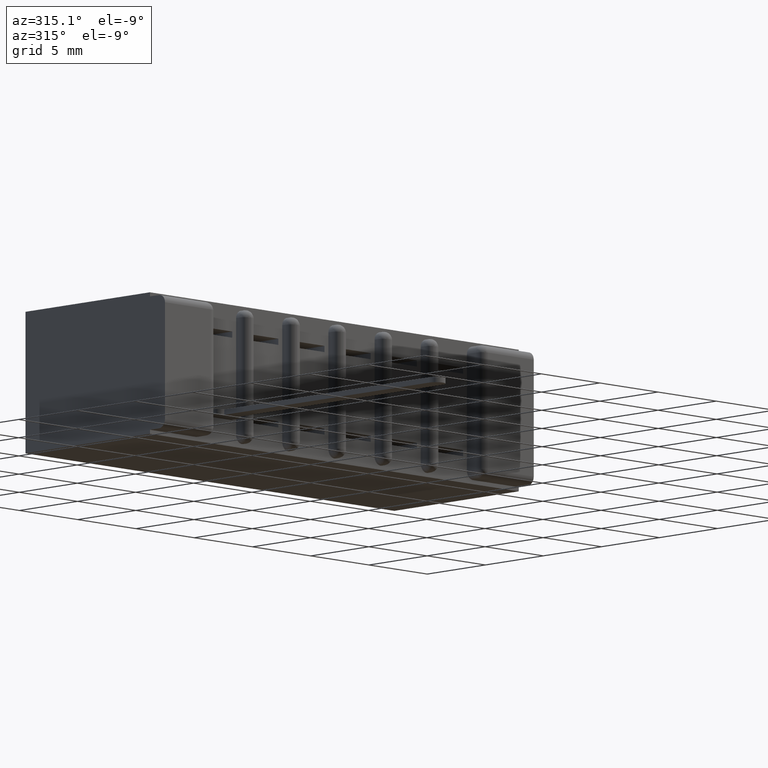
[diagram: clean part render]
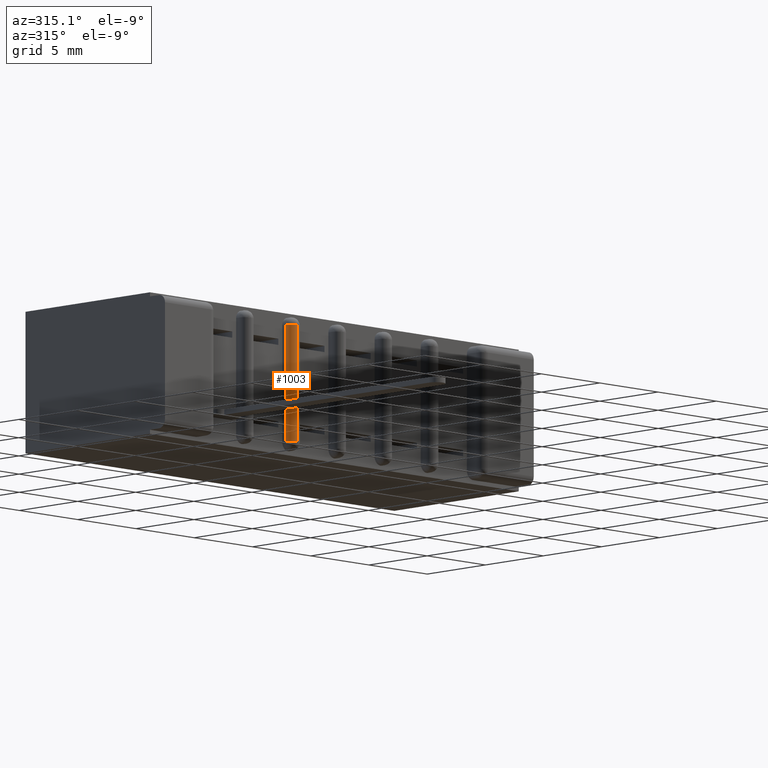
[diagram: same view with one face highlighted and labeled with its STEP entity id]
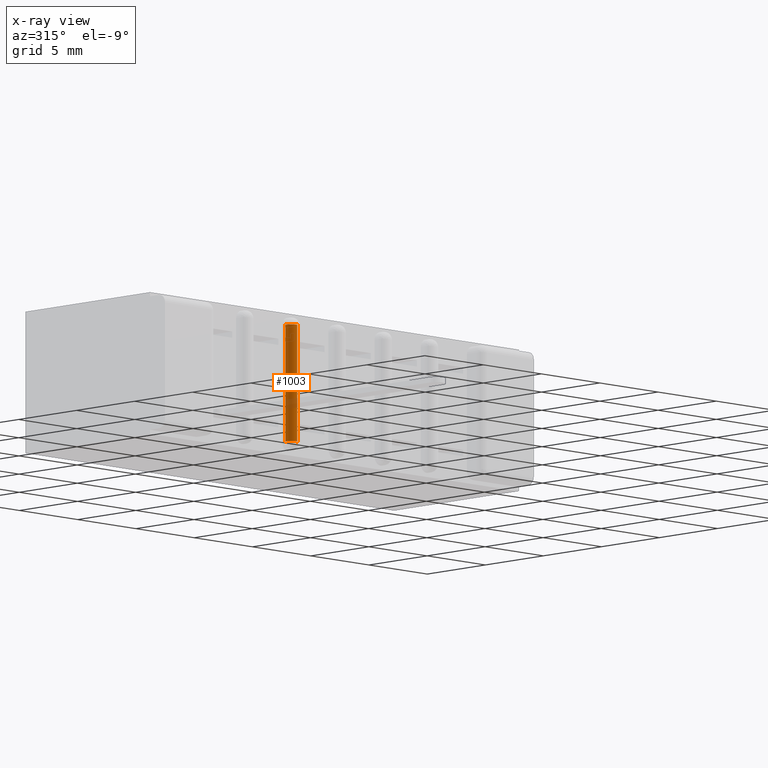
[diagram: x-ray of the same camera — body ghosted, the highlighted face saturated]
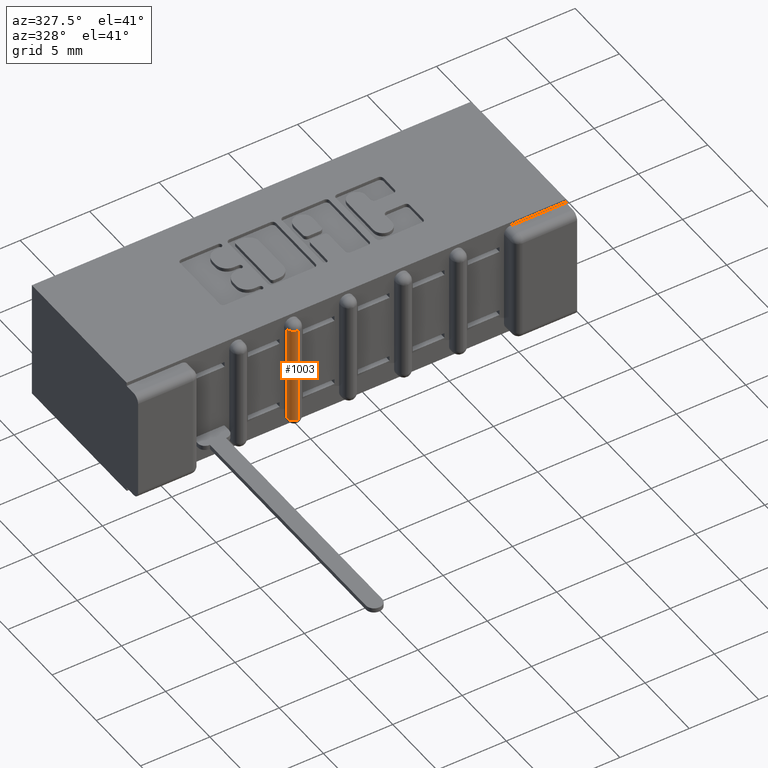
[diagram: same view with one face highlighted and labeled with its STEP entity id]
A machine part, auxiliary view. The second image highlights one B-rep face of the part: STEP entity #1003.
The next image is the same camera in x-ray: the body ghosted, the highlighted face saturated — about 8% of this face is hidden behind the body in this view.
A second angle (auxiliary view) of the same face is appended — the face is thin or edge-on in the first view.
In plain terms, the highlighted cylindrical surface (edge-blend (fillet) strip) has radius 0.508 mm, axis along (-0, 0, 1).
Its self-contained STEP definition (entity closure, byte-faithful):
#591 = LINE ( 'NONE', #5769, #4941 ) ;
#796 = VERTEX_POINT ( 'NONE', #7396 ) ;
#1003 = ADVANCED_FACE ( 'NONE', ( #8412 ), #4807, .T. ) ;
#1132 = DIRECTION ( 'NONE',  ( -1.000000000000000000, 0.0000000000000000000, 1.707404996040159400E-015 ) ) ;
#1174 = CARTESIAN_POINT ( 'NONE',  ( 0.7649999999999999000, 0.04000000000000000100, -0.02999999999999930500 ) ) ;
#1448 = EDGE_CURVE ( 'NONE', #5381, #3625, #9055, .T. ) ;
#1940 = LINE ( 'NONE', #2716, #7222 ) ;
#2576 = VERTEX_POINT ( 'NONE', #6027 ) ;
#2716 = CARTESIAN_POINT ( 'NONE',  ( 0.7449999999999998800, 0.04000000000000000100, -0.02999999999999930800 ) ) ;
#3128 = DIRECTION ( 'NONE',  ( -1.991142852524973500E-015, -0.0000000000000000000, 1.000000000000000000 ) ) ;
#3140 = DIRECTION ( 'NONE',  ( 0.0000000000000000000, 0.0000000000000000000, 1.000000000000000000 ) ) ;
#3193 = DIRECTION ( 'NONE',  ( 1.000000000000000000, 0.0000000000000000000, 0.0000000000000000000 ) ) ;
#3537 = EDGE_LOOP ( 'NONE', ( #4141, #4153, #4629, #4818 ) ) ;
#3625 = VERTEX_POINT ( 'NONE', #8738 ) ;
#3880 = EDGE_CURVE ( 'NONE', #5381, #796, #1940, .T. ) ;
#4141 = ORIENTED_EDGE ( 'NONE', *, *, #4930, .T. ) ;
#4153 = ORIENTED_EDGE ( 'NONE', *, *, #3880, .F. ) ;
#4629 = ORIENTED_EDGE ( 'NONE', *, *, #1448, .T. ) ;
#4807 = CYLINDRICAL_SURFACE ( 'NONE', #7595, 0.02000000000000005900 ) ;
#4818 = ORIENTED_EDGE ( 'NONE', *, *, #4872, .T. ) ;
#4872 = EDGE_CURVE ( 'NONE', #3625, #2576, #591, .T. ) ;
#4930 = EDGE_CURVE ( 'NONE', #2576, #796, #5051, .T. ) ;
#4941 = VECTOR ( 'NONE', #6248, 39.37007874015748100 ) ;
#5051 = CIRCLE ( 'NONE', #6288, 0.02000000000000005900 ) ;
#5381 = VERTEX_POINT ( 'NONE', #6168 ) ;
#5409 = CARTESIAN_POINT ( 'NONE',  ( 0.7650000000000006800, 0.04000000000000000100, -0.3130000000000007200 ) ) ;
#5734 = DIRECTION ( 'NONE',  ( -1.707404996040229400E-015, -0.0000000000000000000, -1.000000000000000000 ) ) ;
#5769 = CARTESIAN_POINT ( 'NONE',  ( 0.7649999999999997900, 0.02000000000000000000, -0.02999999999999927000 ) ) ;
#5936 = CARTESIAN_POINT ( 'NONE',  ( 0.7650000000000005700, 0.04000000000000000100, -0.3430000000000000800 ) ) ;
#6027 = CARTESIAN_POINT ( 'NONE',  ( 0.7650000000000000100, 0.02000000000000000000, -0.02999999999999923200 ) ) ;
#6168 = CARTESIAN_POINT ( 'NONE',  ( 0.7450000000000004400, 0.04000000000000000100, -0.3130000000000007200 ) ) ;
#6248 = DIRECTION ( 'NONE',  ( -1.592914282019978400E-015, 0.0000000000000000000, 1.000000000000000000 ) ) ;
#6288 = AXIS2_PLACEMENT_3D ( 'NONE', #1174, #5734, #1132 ) ;
#6730 = DIRECTION ( 'NONE',  ( -1.991142852524973500E-015, 0.0000000000000000000, 1.000000000000000000 ) ) ;
#7202 = AXIS2_PLACEMENT_3D ( 'NONE', #5409, #3140, #3193 ) ;
#7222 = VECTOR ( 'NONE', #3128, 39.37007874015748100 ) ;
#7396 = CARTESIAN_POINT ( 'NONE',  ( 0.7449999999999998800, 0.04000000000000000100, -0.02999999999999927000 ) ) ;
#7595 = AXIS2_PLACEMENT_3D ( 'NONE', #5936, #6730, #7607 ) ;
#7607 = DIRECTION ( 'NONE',  ( 1.000000000000000000, 0.0000000000000000000, 3.414809992080318900E-015 ) ) ;
#8412 = FACE_OUTER_BOUND ( 'NONE', #3537, .T. ) ;
#8738 = CARTESIAN_POINT ( 'NONE',  ( 0.7650000000000005700, 0.02000000000000000000, -0.3130000000000006700 ) ) ;
#9055 = CIRCLE ( 'NONE', #7202, 0.02000000000000005900 ) ;